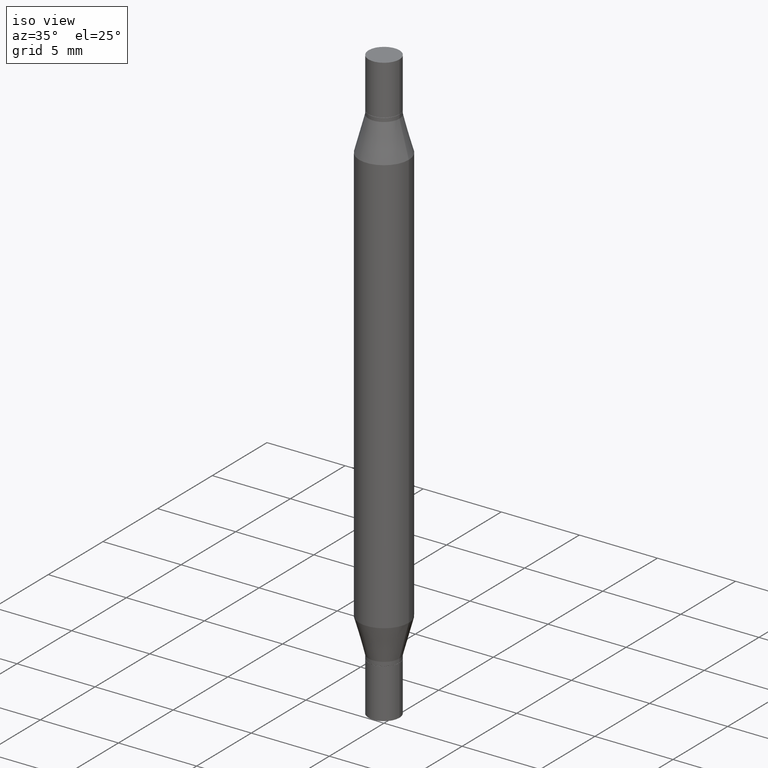
[diagram: clean part render]
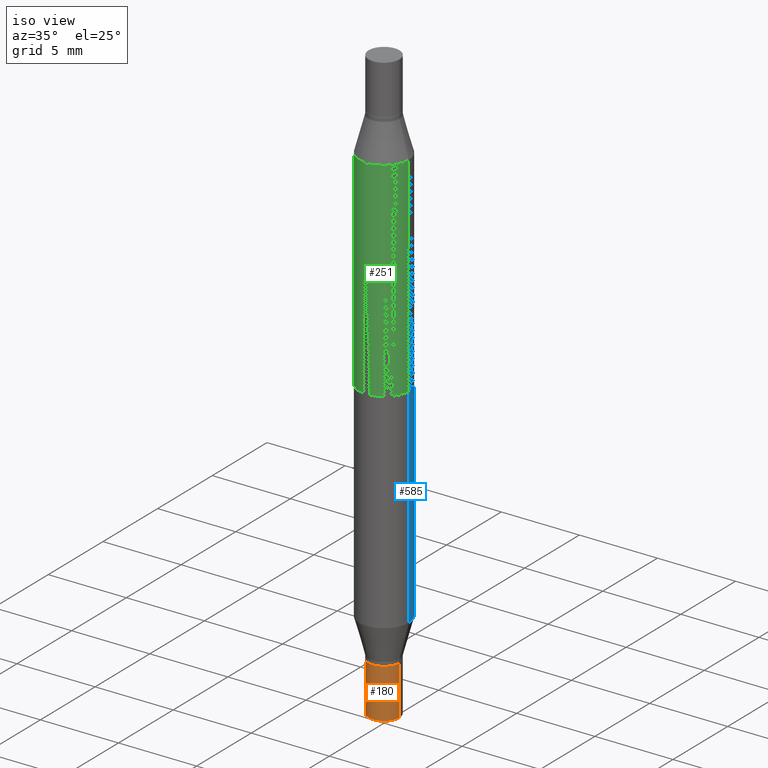
[diagram: same view with three faces highlighted in distinct colors, each labeled with its STEP entity id]
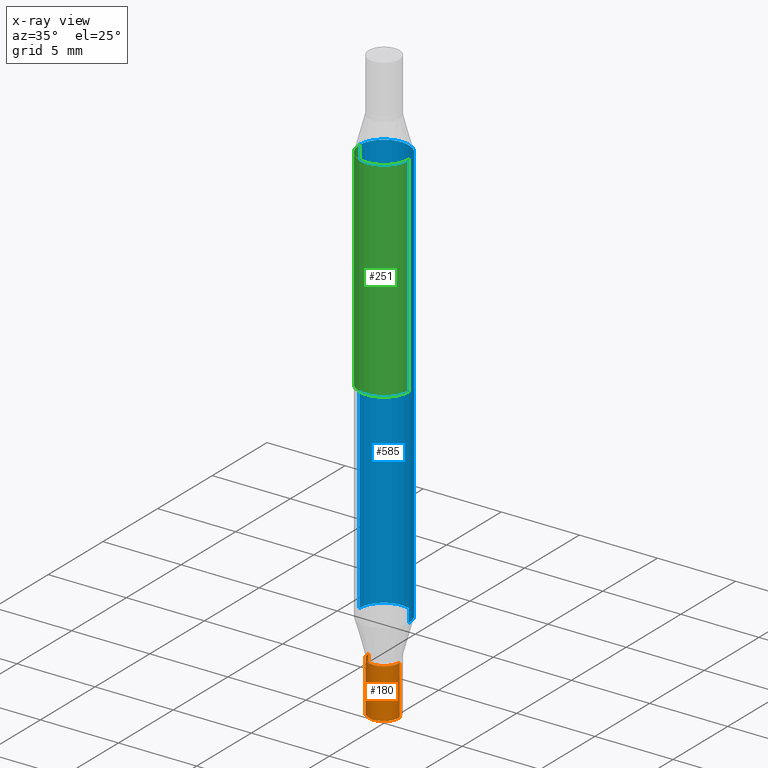
[diagram: x-ray of the same camera — body ghosted, the three highlighted faces saturated]
A machine part, iso view with three faces highlighted in distinct colors.
The next image is the same camera in x-ray (body ghosted, the three faces saturated) — at least one of them is partly hidden behind the body in this view.
Their STEP definitions:

[orange] entity #180 — the highlighted cylindrical surface (edge-blend (fillet) strip) has radius 0.9919 mm, axis along (-0, 0, 1).
#34 = DIRECTION ( 'NONE',  ( 1.000000000000000000, -6.982962677686266711E-15, 4.876176775795935232E-29 ) ) ;
#58 = VERTEX_POINT ( 'NONE', #613 ) ;
#102 = DIRECTION ( 'NONE',  ( -2.445468806185136597E-29, 3.491481338843145583E-15, 1.000000000000000000 ) ) ;
#114 = CARTESIAN_POINT ( 'NONE',  ( 0.03905000000000000138, -5.509906700828367289E-15, -1.500000000000000222 ) ) ;
#120 = VERTEX_POINT ( 'NONE', #377 ) ;
#142 = CIRCLE ( 'NONE', #743, 0.03905000000000000138 ) ;
#180 = ADVANCED_FACE ( 'NONE', ( #248 ), #414, .T. ) ;
#246 = EDGE_CURVE ( 'NONE', #350, #891, #405, .T. ) ;
#248 = FACE_OUTER_BOUND ( 'NONE', #499, .T. ) ;
#252 = CARTESIAN_POINT ( 'NONE',  ( 0.03905000000000000138, -5.073471533472974831E-15, -1.375000000000000222 ) ) ;
#295 = EDGE_CURVE ( 'NONE', #120, #891, #142, .T. ) ;
#324 = EDGE_CURVE ( 'NONE', #58, #350, #540, .T. ) ;
#350 = VERTEX_POINT ( 'NONE', #114 ) ;
#366 = AXIS2_PLACEMENT_3D ( 'NONE', #924, #861, #34 ) ;
#377 = CARTESIAN_POINT ( 'NONE',  ( -0.03905000000000000138, -4.741537486272703801E-15, -1.375000000000000222 ) ) ;
#388 = CARTESIAN_POINT ( 'NONE',  ( -0.03905000000000000138, 2.774669383143191324E-16, -1.920844152744540637E-30 ) ) ;
#405 = LINE ( 'NONE', #781, #793 ) ;
#414 = CYLINDRICAL_SURFACE ( 'NONE', #366, 0.03905000000000000138 ) ;
#423 = CARTESIAN_POINT ( 'NONE',  ( 3.362519608504562821E-29, -4.800786840909326507E-15, -1.375000000000000222 ) ) ;
#437 = ORIENTED_EDGE ( 'NONE', *, *, #295, .F. ) ;
#470 = LINE ( 'NONE', #388, #504 ) ;
#489 = DIRECTION ( 'NONE',  ( -2.445468806185136597E-29, 3.491481338843145583E-15, 1.000000000000000000 ) ) ;
#499 = EDGE_LOOP ( 'NONE', ( #663, #738, #506, #437 ) ) ;
#504 = VECTOR ( 'NONE', #535, 39.37007874015748143 ) ;
#506 = ORIENTED_EDGE ( 'NONE', *, *, #246, .T. ) ;
#535 = DIRECTION ( 'NONE',  ( -2.445468806185136877E-29, 3.491481338843145188E-15, 1.000000000000000000 ) ) ;
#540 = CIRCLE ( 'NONE', #845, 0.03905000000000000138 ) ;
#613 = CARTESIAN_POINT ( 'NONE',  ( -0.03905000000000000138, -4.741537486272703801E-15, -1.500000000000000222 ) ) ;
#638 = DIRECTION ( 'NONE',  ( -2.445468806185136877E-29, 3.491481338843145188E-15, 1.000000000000000000 ) ) ;
#663 = ORIENTED_EDGE ( 'NONE', *, *, #950, .F. ) ;
#738 = ORIENTED_EDGE ( 'NONE', *, *, #324, .T. ) ;
#743 = AXIS2_PLACEMENT_3D ( 'NONE', #423, #489, #949 ) ;
#781 = CARTESIAN_POINT ( 'NONE',  ( 0.03905000000000000138, -2.726846925636487182E-16, 1.904147030948312851E-30 ) ) ;
#793 = VECTOR ( 'NONE', #638, 39.37007874015748143 ) ;
#845 = AXIS2_PLACEMENT_3D ( 'NONE', #935, #102, #945 ) ;
#861 = DIRECTION ( 'NONE',  ( -2.445468806185136597E-29, 3.491481338843145583E-15, 1.000000000000000000 ) ) ;
#891 = VERTEX_POINT ( 'NONE', #252 ) ;
#924 = CARTESIAN_POINT ( 'NONE',  ( 0.000000000000000000, 0.000000000000000000, 0.000000000000000000 ) ) ;
#935 = CARTESIAN_POINT ( 'NONE',  ( 3.668203209277704895E-29, -5.237222008264718177E-15, -1.500000000000000222 ) ) ;
#945 = DIRECTION ( 'NONE',  ( 1.000000000000000000, -6.982962677686266711E-15, 0.000000000000000000 ) ) ;
#949 = DIRECTION ( 'NONE',  ( 1.000000000000000000, -6.982962677686266711E-15, 0.000000000000000000 ) ) ;
#950 = EDGE_CURVE ( 'NONE', #58, #120, #470, .T. ) ;

[blue] entity #585 — the highlighted cylindrical surface (edge-blend (fillet) strip) has radius 1.5875 mm, axis along (-0, -0, -1).
#88 = VECTOR ( 'NONE', #685, 39.37007874015748143 ) ;
#154 = CARTESIAN_POINT ( 'NONE',  ( 0.06250000000000000000, -5.673899992708591942E-15, -1.499999999999999556 ) ) ;
#167 = DIRECTION ( 'NONE',  ( 1.000000000000000000, -6.982962677686262766E-15, 0.000000000000000000 ) ) ;
#168 = AXIS2_PLACEMENT_3D ( 'NONE', #860, #182, #562 ) ;
#177 = AXIS2_PLACEMENT_3D ( 'NONE', #378, #467, #167 ) ;
#182 = DIRECTION ( 'NONE',  ( -2.445468806185136597E-29, 3.491481338843145583E-15, 1.000000000000000000 ) ) ;
#203 = ORIENTED_EDGE ( 'NONE', *, *, #978, .T. ) ;
#204 = CARTESIAN_POINT ( 'NONE',  ( 0.06250000000000000000, -1.213176917961717218E-15, -0.2225165914374896692 ) ) ;
#211 = VECTOR ( 'NONE', #977, 39.37007874015748143 ) ;
#378 = CARTESIAN_POINT ( 'NONE',  ( 0.000000000000000000, -5.237464825353201062E-15, -1.499999999999999556 ) ) ;
#386 = CARTESIAN_POINT ( 'NONE',  ( -0.06250000000000000000, -4.808683700492480339E-15, -1.499999999999999556 ) ) ;
#399 = EDGE_CURVE ( 'NONE', #403, #675, #482, .T. ) ;
#403 = VERTEX_POINT ( 'NONE', #204 ) ;
#467 = DIRECTION ( 'NONE',  ( -2.445468806185136597E-29, -3.491805094961124077E-15, -1.000000000000000000 ) ) ;
#472 = FACE_OUTER_BOUND ( 'NONE', #907, .T. ) ;
#482 = CIRCLE ( 'NONE', #555, 0.06250000000000000000 ) ;
#509 = VERTEX_POINT ( 'NONE', #652 ) ;
#519 = CIRCLE ( 'NONE', #168, 0.06250000000000000000 ) ;
#533 = CARTESIAN_POINT ( 'NONE',  ( -0.06250000000000000000, -3.479606257456047271E-16, -0.2225165914374896692 ) ) ;
#555 = AXIS2_PLACEMENT_3D ( 'NONE', #583, #880, #820 ) ;
#562 = DIRECTION ( 'NONE',  ( 1.000000000000000000, -6.982962677686262766E-15, 0.000000000000000000 ) ) ;
#583 = CARTESIAN_POINT ( 'NONE',  ( 3.124045826058680346E-29, -7.767417506063242664E-16, -0.2225165914374896692 ) ) ;
#585 = ADVANCED_FACE ( 'NONE', ( #472 ), #594, .T. ) ;
#591 = VERTEX_POINT ( 'NONE', #598 ) ;
#594 = CYLINDRICAL_SURFACE ( 'NONE', #177, 0.06250000000000000000 ) ;
#598 = CARTESIAN_POINT ( 'NONE',  ( 0.06250000000000000000, -4.896744649033128608E-15, -1.277483408562509970 ) ) ;
#641 = EDGE_CURVE ( 'NONE', #403, #591, #914, .T. ) ;
#652 = CARTESIAN_POINT ( 'NONE',  ( -0.06250000000000000000, -2.189829879271637577E-15, -1.277483408562509970 ) ) ;
#675 = VERTEX_POINT ( 'NONE', #533 ) ;
#681 = EDGE_CURVE ( 'NONE', #675, #509, #838, .T. ) ;
#685 = DIRECTION ( 'NONE',  ( -2.445468806185136877E-29, -3.491805094961123683E-15, -1.000000000000000000 ) ) ;
#762 = ORIENTED_EDGE ( 'NONE', *, *, #399, .F. ) ;
#820 = DIRECTION ( 'NONE',  ( 1.000000000000000000, -6.982962677686266711E-15, 0.000000000000000000 ) ) ;
#838 = LINE ( 'NONE', #386, #88 ) ;
#860 = CARTESIAN_POINT ( 'NONE',  ( 3.124045826058680346E-29, -4.460309481677736938E-15, -1.277483408562509970 ) ) ;
#880 = DIRECTION ( 'NONE',  ( 2.445468806185136597E-29, 3.491805094961124077E-15, 1.000000000000000000 ) ) ;
#889 = ORIENTED_EDGE ( 'NONE', *, *, #681, .F. ) ;
#896 = ORIENTED_EDGE ( 'NONE', *, *, #641, .T. ) ;
#907 = EDGE_LOOP ( 'NONE', ( #889, #762, #896, #203 ) ) ;
#914 = LINE ( 'NONE', #154, #211 ) ;
#977 = DIRECTION ( 'NONE',  ( -2.445468806185136877E-29, -3.491805094961123683E-15, -1.000000000000000000 ) ) ;
#978 = EDGE_CURVE ( 'NONE', #591, #509, #519, .T. ) ;

[green] entity #251 — the highlighted cylindrical surface (edge-blend (fillet) strip) has radius 1.5875 mm, axis along (-0, -0, -1).
#17 = DIRECTION ( 'NONE',  ( -2.445468806185136877E-29, -3.491805094961123683E-15, -1.000000000000000000 ) ) ;
#21 = AXIS2_PLACEMENT_3D ( 'NONE', #104, #559, #29 ) ;
#29 = DIRECTION ( 'NONE',  ( 1.000000000000000000, -6.982962677686262766E-15, 0.000000000000000000 ) ) ;
#55 = CIRCLE ( 'NONE', #397, 0.06250000000000000000 ) ;
#99 = LINE ( 'NONE', #325, #794 ) ;
#104 = CARTESIAN_POINT ( 'NONE',  ( 0.000000000000000000, -5.237464825353201062E-15, -1.499999999999999556 ) ) ;
#107 = DIRECTION ( 'NONE',  ( 1.000000000000000000, -6.982962677686266711E-15, 0.000000000000000000 ) ) ;
#109 = CARTESIAN_POINT ( 'NONE',  ( -0.06250000000000000000, -1.268895252508620708E-15, -0.7499999999999997780 ) ) ;
#117 = CARTESIAN_POINT ( 'NONE',  ( 1.834101604638851887E-29, -2.618611004132358299E-15, -0.7499999999999997780 ) ) ;
#135 = EDGE_CURVE ( 'NONE', #140, #164, #694, .T. ) ;
#140 = VERTEX_POINT ( 'NONE', #942 ) ;
#164 = VERTEX_POINT ( 'NONE', #109 ) ;
#165 = DIRECTION ( 'NONE',  ( -2.445468806185136877E-29, -3.491805094961123683E-15, -1.000000000000000000 ) ) ;
#188 = DIRECTION ( 'NONE',  ( -0.000000000000000000, -3.491643216902134830E-15, -1.000000000000000000 ) ) ;
#251 = ADVANCED_FACE ( 'NONE', ( #259 ), #703, .T. ) ;
#255 = DIRECTION ( 'NONE',  ( 2.445468806185136597E-29, 3.491805094961124077E-15, 1.000000000000000000 ) ) ;
#259 = FACE_OUTER_BOUND ( 'NONE', #747, .T. ) ;
#284 = VERTEX_POINT ( 'NONE', #497 ) ;
#318 = EDGE_CURVE ( 'NONE', #284, #767, #55, .T. ) ;
#319 = VECTOR ( 'NONE', #17, 39.37007874015748143 ) ;
#325 = CARTESIAN_POINT ( 'NONE',  ( -0.06250000000000000000, -4.808683700492480339E-15, -1.499999999999999556 ) ) ;
#397 = AXIS2_PLACEMENT_3D ( 'NONE', #700, #255, #107 ) ;
#409 = CARTESIAN_POINT ( 'NONE',  ( 0.06250000000000000000, -1.213176917961717218E-15, -0.2225165914374896692 ) ) ;
#447 = ORIENTED_EDGE ( 'NONE', *, *, #135, .F. ) ;
#463 = AXIS2_PLACEMENT_3D ( 'NONE', #117, #188, #784 ) ;
#497 = CARTESIAN_POINT ( 'NONE',  ( -0.06250000000000000000, -3.479606257456047271E-16, -0.2225165914374896692 ) ) ;
#508 = ORIENTED_EDGE ( 'NONE', *, *, #318, .F. ) ;
#559 = DIRECTION ( 'NONE',  ( -2.445468806185136597E-29, -3.491805094961124077E-15, -1.000000000000000000 ) ) ;
#680 = ORIENTED_EDGE ( 'NONE', *, *, #908, .T. ) ;
#694 = CIRCLE ( 'NONE', #463, 0.06250000000000000000 ) ;
#700 = CARTESIAN_POINT ( 'NONE',  ( 3.124045826058680346E-29, -7.767417506063242664E-16, -0.2225165914374896692 ) ) ;
#702 = LINE ( 'NONE', #916, #319 ) ;
#703 = CYLINDRICAL_SURFACE ( 'NONE', #21, 0.06250000000000000000 ) ;
#747 = EDGE_LOOP ( 'NONE', ( #508, #680, #447, #825 ) ) ;
#767 = VERTEX_POINT ( 'NONE', #409 ) ;
#784 = DIRECTION ( 'NONE',  ( 0.000000000000000000, 1.000000000000000000, -4.370956789862821150E-15 ) ) ;
#794 = VECTOR ( 'NONE', #165, 39.37007874015748143 ) ;
#825 = ORIENTED_EDGE ( 'NONE', *, *, #851, .F. ) ;
#851 = EDGE_CURVE ( 'NONE', #767, #140, #702, .T. ) ;
#908 = EDGE_CURVE ( 'NONE', #284, #164, #99, .T. ) ;
#916 = CARTESIAN_POINT ( 'NONE',  ( 0.06250000000000000000, -5.673899992708591942E-15, -1.499999999999999556 ) ) ;
#942 = CARTESIAN_POINT ( 'NONE',  ( 0.06250000000000000000, -2.134111544724732903E-15, -0.7499999999999997780 ) ) ;